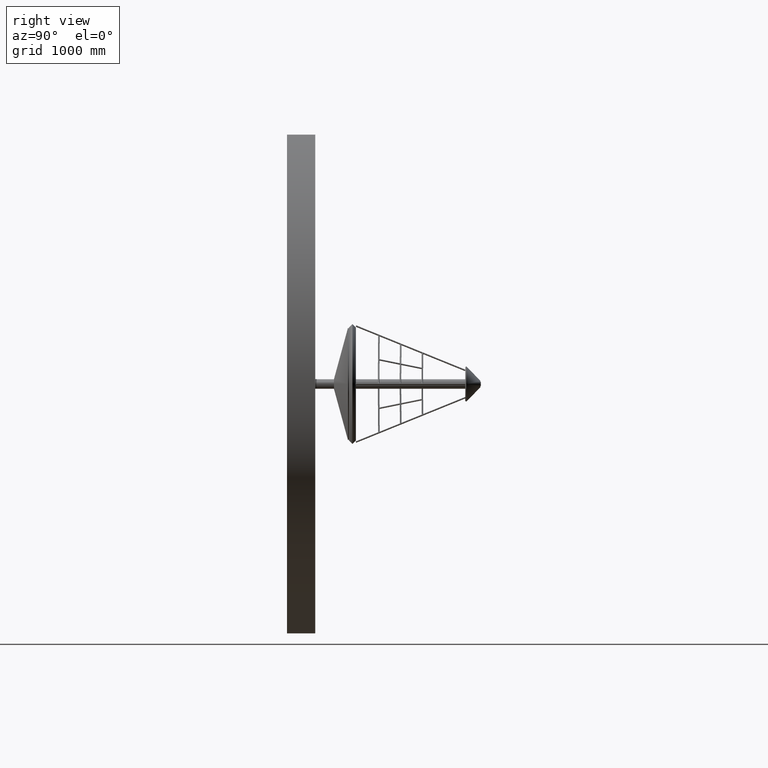
[diagram: clean part render]
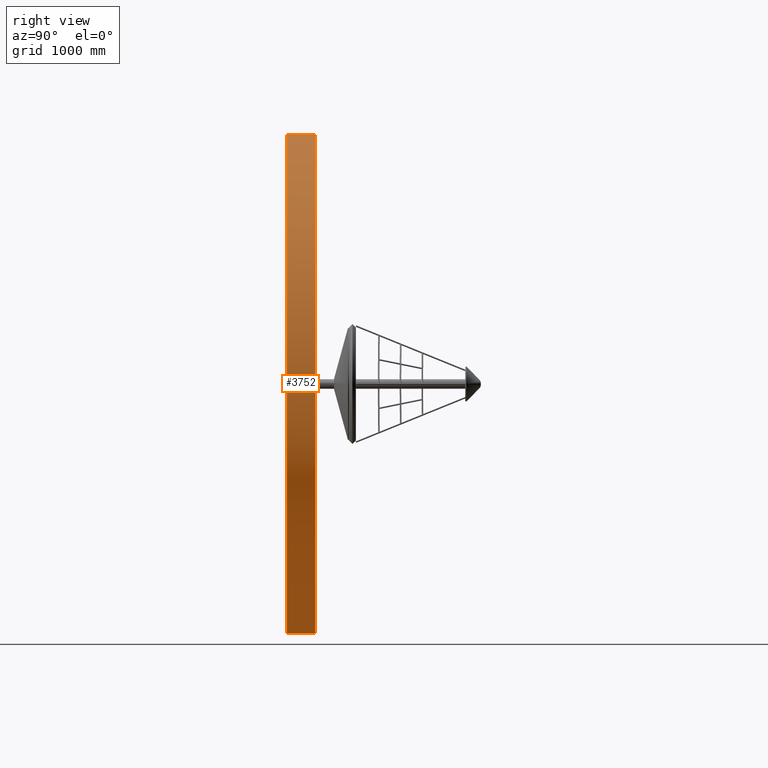
[diagram: same view with one face highlighted and labeled with its STEP entity id]
A machine part, right view. The second image highlights one B-rep face of the part: STEP entity #3752.
In plain terms, the highlighted cylindrical surface (bore or boss wall) has radius 2650 mm, axis along (-0, -1, -0).
Its self-contained STEP definition (entity closure, byte-faithful):
#134 = DIRECTION ( 'NONE',  ( -0.0000000000000000000, -1.000000000000000000, -0.0000000000000000000 ) ) ;
#252 = FACE_OUTER_BOUND ( 'NONE', #6315, .T. ) ;
#614 = DIRECTION ( 'NONE',  ( 0.0000000000000000000, 0.0000000000000000000, 1.000000000000000000 ) ) ;
#1540 = CARTESIAN_POINT ( 'NONE',  ( 0.0000000000000000000, 0.0000000000000000000, 2650.000000000000500 ) ) ;
#1737 = FACE_OUTER_BOUND ( 'NONE', #6267, .T. ) ;
#1859 = EDGE_CURVE ( 'NONE', #4691, #4691, #2474, .T. ) ;
#2214 = AXIS2_PLACEMENT_3D ( 'NONE', #5608, #4113, #2634 ) ;
#2353 = VERTEX_POINT ( 'NONE', #2592 ) ;
#2474 = CIRCLE ( 'NONE', #3207, 2650.000000000000500 ) ;
#2592 = CARTESIAN_POINT ( 'NONE',  ( 0.0000000000000000000, 300.0000000000000000, 2650.000000000000500 ) ) ;
#2634 = DIRECTION ( 'NONE',  ( 0.0000000000000000000, 0.0000000000000000000, 1.000000000000000000 ) ) ;
#2833 = AXIS2_PLACEMENT_3D ( 'NONE', #3162, #134, #2966 ) ;
#2966 = DIRECTION ( 'NONE',  ( 0.0000000000000000000, 0.0000000000000000000, -1.000000000000000000 ) ) ;
#3056 = EDGE_CURVE ( 'NONE', #2353, #2353, #6322, .T. ) ;
#3162 = CARTESIAN_POINT ( 'NONE',  ( 0.0000000000000000000, 300.0000000000000000, 0.0000000000000000000 ) ) ;
#3207 = AXIS2_PLACEMENT_3D ( 'NONE', #5664, #6179, #614 ) ;
#3752 = ADVANCED_FACE ( 'NONE', ( #1737, #252 ), #4135, .T. ) ;
#4113 = DIRECTION ( 'NONE',  ( 0.0000000000000000000, 1.000000000000000000, 0.0000000000000000000 ) ) ;
#4135 = CYLINDRICAL_SURFACE ( 'NONE', #2833, 2650.000000000000500 ) ;
#4491 = ORIENTED_EDGE ( 'NONE', *, *, #3056, .F. ) ;
#4691 = VERTEX_POINT ( 'NONE', #1540 ) ;
#4820 = ORIENTED_EDGE ( 'NONE', *, *, #1859, .T. ) ;
#5608 = CARTESIAN_POINT ( 'NONE',  ( 0.0000000000000000000, 300.0000000000000000, 0.0000000000000000000 ) ) ;
#5664 = CARTESIAN_POINT ( 'NONE',  ( 0.0000000000000000000, 0.0000000000000000000, 0.0000000000000000000 ) ) ;
#6179 = DIRECTION ( 'NONE',  ( 0.0000000000000000000, 1.000000000000000000, 0.0000000000000000000 ) ) ;
#6267 = EDGE_LOOP ( 'NONE', ( #4491 ) ) ;
#6315 = EDGE_LOOP ( 'NONE', ( #4820 ) ) ;
#6322 = CIRCLE ( 'NONE', #2214, 2650.000000000000500 ) ;